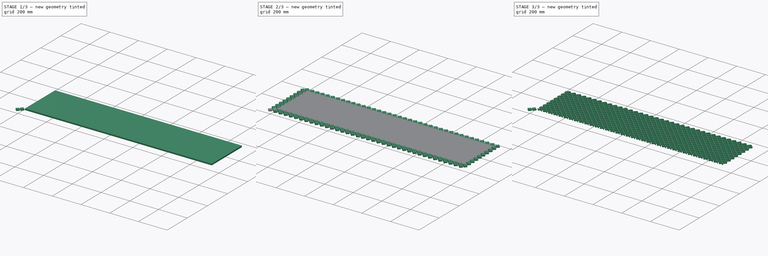
[diagram: build sequence overview — one tinted view per stage of 3, left to right]
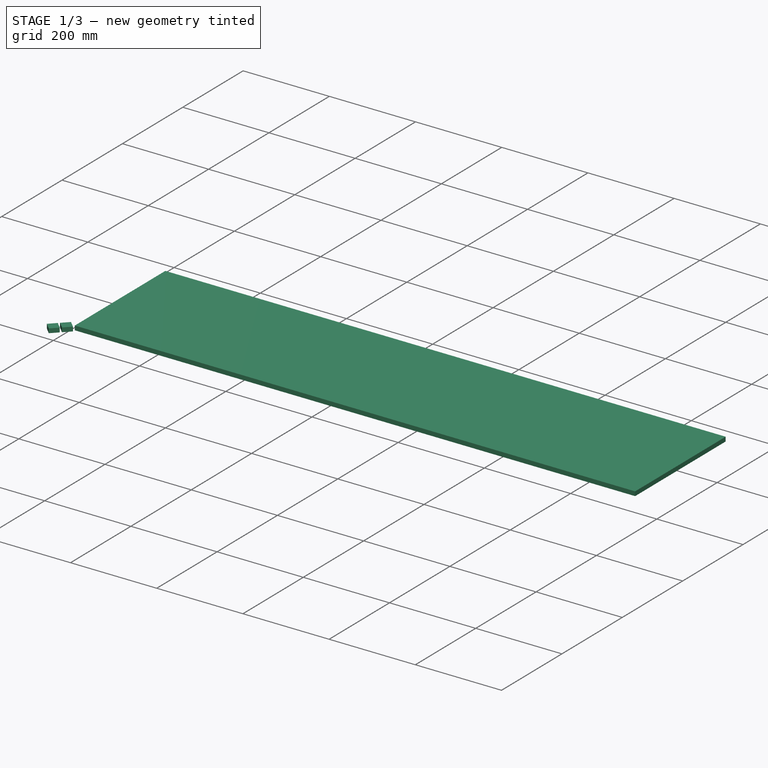
[diagram: stage 1 of 3 — iso view after this stage's code; geometry added in this stage tinted green]
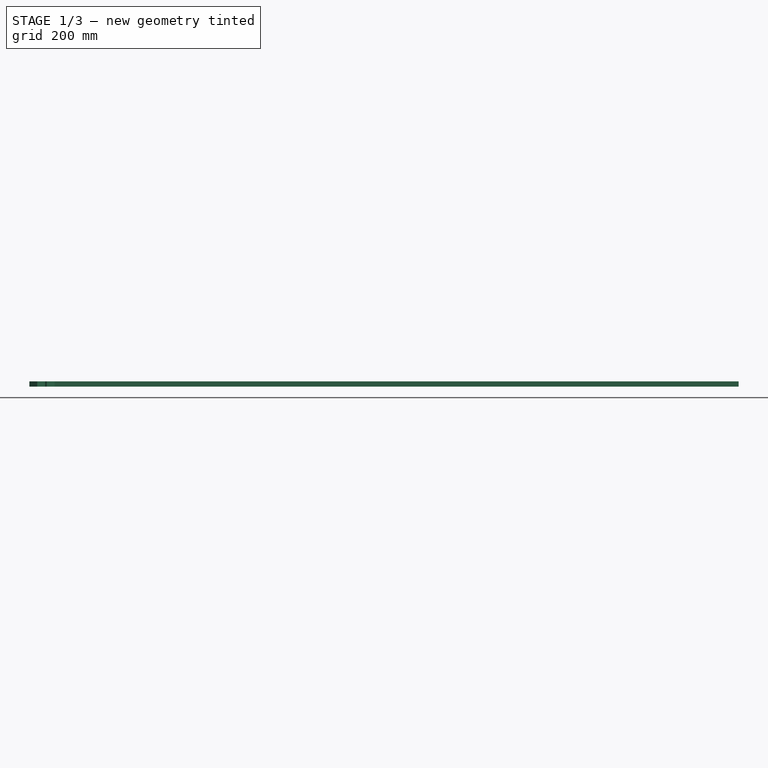
[diagram: stage 1 of 3 — front view after this stage's code; geometry added in this stage tinted green]
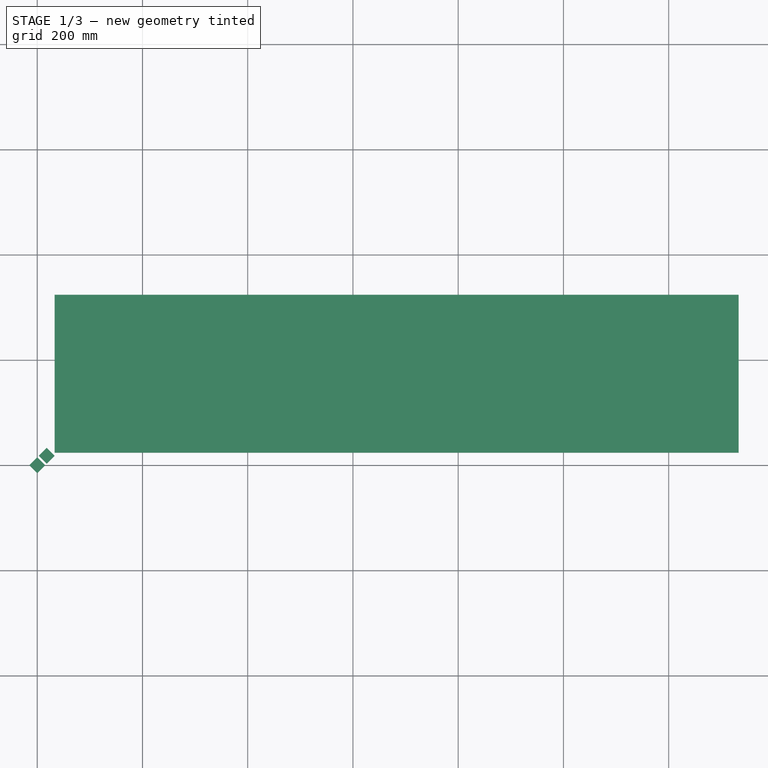
[diagram: stage 1 of 3 — top view after this stage's code; geometry added in this stage tinted green]
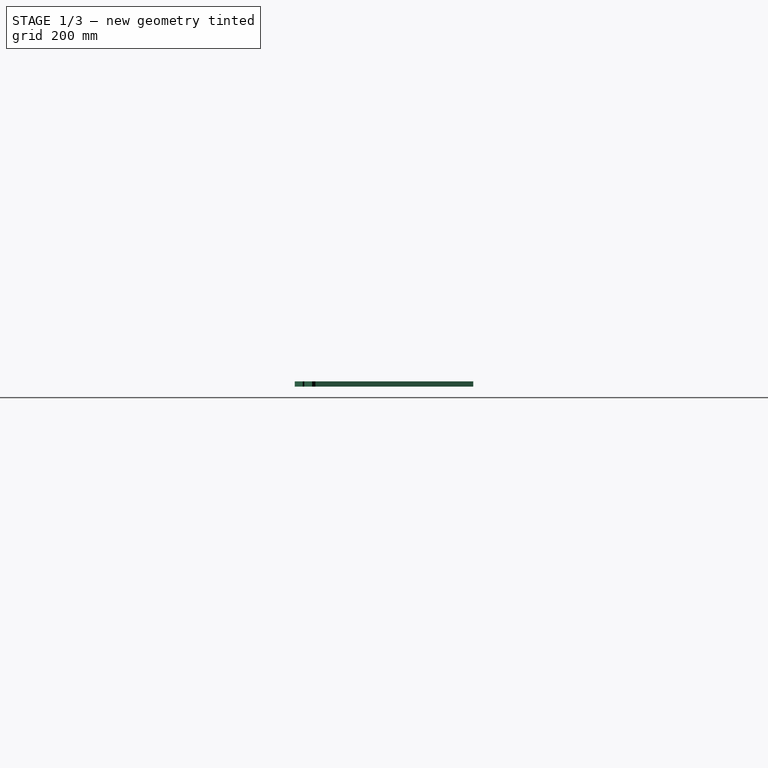
[diagram: stage 1 of 3 — right view after this stage's code; geometry added in this stage tinted green]
FCSTD DOCUMENT  (FreeCAD 0.18R16131 (Git))
Label: grille
License: All rights reserved
LicenseURL: http://en.wikipedia.org/wiki/All_rights_reserved
objects: Part::Extrusion×2, Sketcher::SketchObject×1, PartDesign::Body×1, Part::FeaturePython×1, Part::Box×1, Part::Cut×1, App::DocumentObjectGroup×1
note: 7 computed .brp shape members not serialized (recipe doc carries the construction recipe); baked Part::Feature solids carry a one-line shape summary decoded from their .brp

FEATURE [Sketcher::SketchObject] Sketch
  MapMode = 5
  Support = -> [XY_Plane]
  sketch-geometry (15):
    g0: LineSegment [constr] StartX=0 StartY=15 StartZ=0 EndX=0 EndY=-15 EndZ=0
    g1: LineSegment [constr] StartX=-15 StartY=0 StartZ=0 EndX=15 EndY=0 EndZ=0
    g2: LineSegment StartX=-15 StartY=0 StartZ=0 EndX=0 EndY=15 EndZ=0
    g3: LineSegment StartX=0 StartY=15 StartZ=0 EndX=15 EndY=0 EndZ=0
    g4: LineSegment StartX=15 StartY=0 StartZ=0 EndX=0 EndY=-15 EndZ=0
    g5: LineSegment StartX=0 StartY=-15 StartZ=0 EndX=-15 EndY=0 EndZ=0
    g6: LineSegment [constr] StartX=18 StartY=33 StartZ=0 EndX=18 EndY=3 EndZ=0
    g7: LineSegment [constr] StartX=3 StartY=18 StartZ=0 EndX=33 EndY=18 EndZ=0
    g8: LineSegment StartX=3 StartY=18 StartZ=0 EndX=18 EndY=33 EndZ=0
    g9: LineSegment StartX=18 StartY=33 StartZ=0 EndX=33 EndY=18 EndZ=0
    g10: LineSegment StartX=33 StartY=18 StartZ=0 EndX=18 EndY=3 EndZ=0
    g11: LineSegment StartX=18 StartY=3 StartZ=0 EndX=3 EndY=18 EndZ=0
    g12: LineSegment [constr] StartX=0 StartY=15 StartZ=0 EndX=3 EndY=18 EndZ=0
    g13: LineSegment [constr] StartX=15 StartY=0 StartZ=0 EndX=18 EndY=0 EndZ=0
    g14: LineSegment [constr] StartX=18 StartY=3 StartZ=0 EndX=18 EndY=0 EndZ=0
  constraints (36):
    c: PointOnObject(g0,g-2)
    c: PointOnObject(g1,g-1)
    c: DistanceX(g1,g1) = 30
    c: DistanceY(g0,g0) = 30
    c: Symmetric(g0,g0,g-1)
    c: Symmetric(g1,g1,g-1)
    c: Coincident(g2,g1)
    c: Coincident(g2,g0)
    c: Coincident(g3,g2)
    c: Coincident(g3,g1)
    c: Coincident(g4,g3)
    c: Coincident(g4,g0)
    c: Coincident(g5,g4)
    c: Coincident(g5,g2)
    c: Equal(g1,g7) = 30
    c: Equal(g0,g6) = 30
    c: Coincident(g8,g7)
    c: Coincident(g8,g6)
    c: Coincident(g9,g8)
    c: Coincident(g9,g7)
    c: Coincident(g10,g9)
    c: Coincident(g10,g6)
    c: Coincident(g11,g10)
    c: Coincident(g11,g8)
    c: Perpendicular(g-1,g6)
    c: Symmetric(g8,g10,g7)
    c: Symmetric(g8,g9,g6)
    c: Coincident(g12,g2)
    c: Coincident(g12,g8)
    c: Perpendicular(g12,g11)
    c: Coincident(g13,g3)
    c: PointOnObject(g13,g-1)
    c: Coincident(g14,g10)
    c: Coincident(g14,g13)
    c: Vertical(g14)
    c: DistanceX(g13,g13) = 3
FEATURE [PartDesign::Body] Body
  Group = -> [Sketch]
  Origin = -> Origin
FEATURE [Part::Extrusion] Extrude
  Base = -> Sketch
  Dir = (0,0,1)
  DirMode = 2
  FaceMakerClass = Part::FaceMakerBullseye
  LengthFwd = 10
  LengthRev = 0
  Solid = true
  Symmetric = false
FEATURE [Part::Box] Box  label="Cube"
  AttacherType = Attacher::AttachEngine3D
  Height = 10
  Length = 1300
  Placement = pos=(33,24,0) rot=(0,0,1;0rad)
  Width = 300
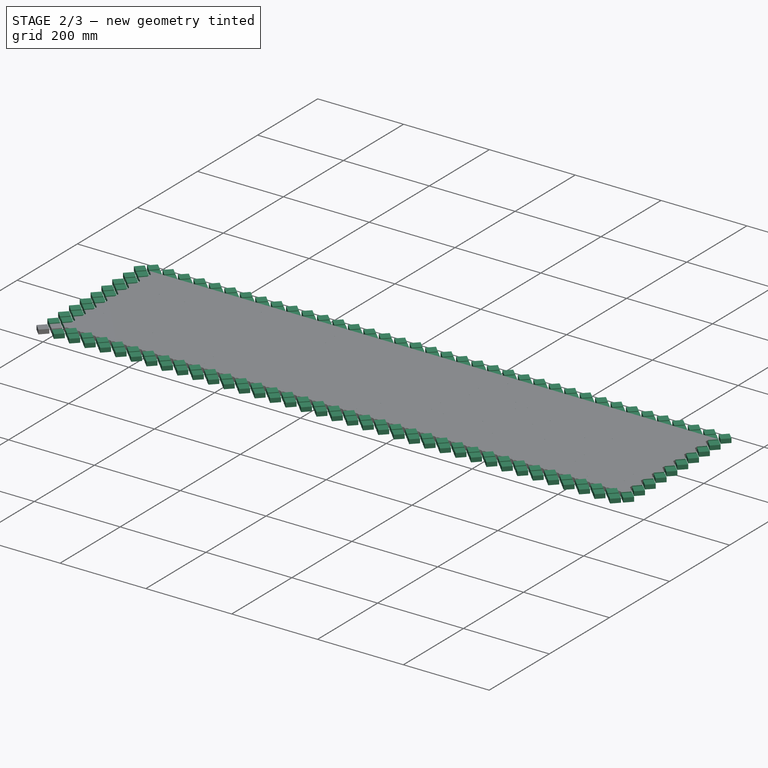
[diagram: stage 2 of 3 — iso view after this stage's code; geometry added in this stage tinted green]
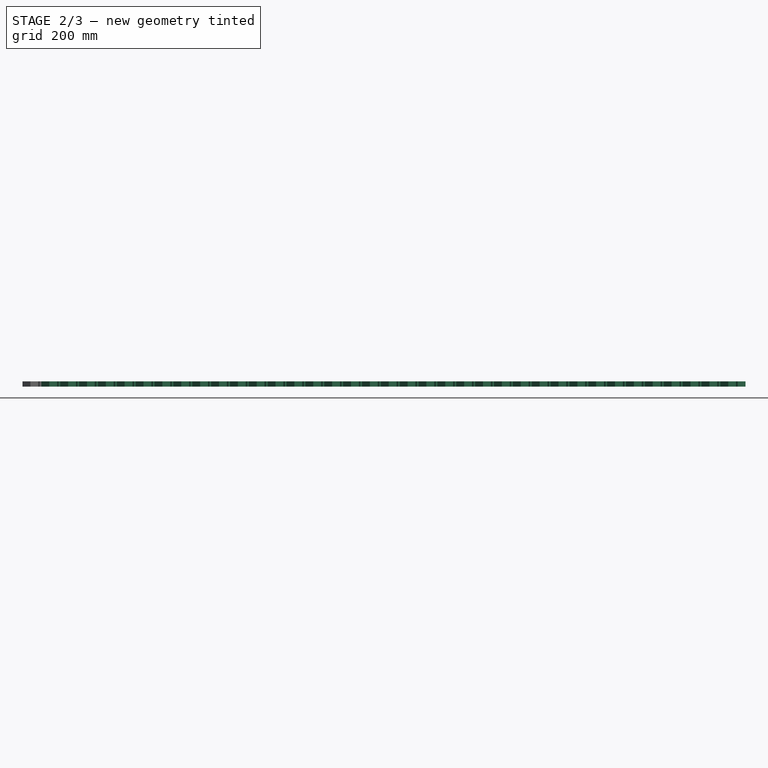
[diagram: stage 2 of 3 — front view after this stage's code; geometry added in this stage tinted green]
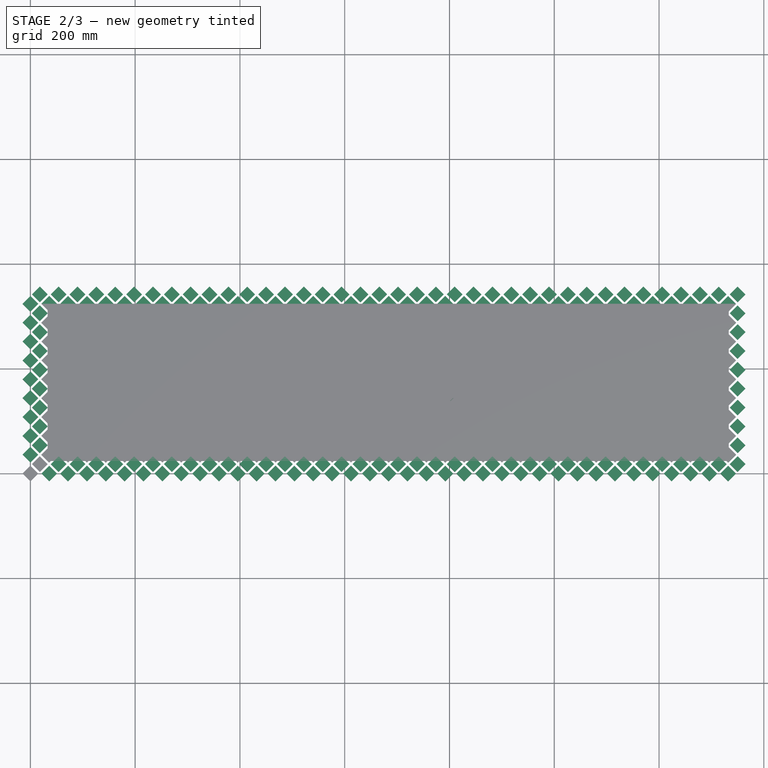
[diagram: stage 2 of 3 — top view after this stage's code; geometry added in this stage tinted green]
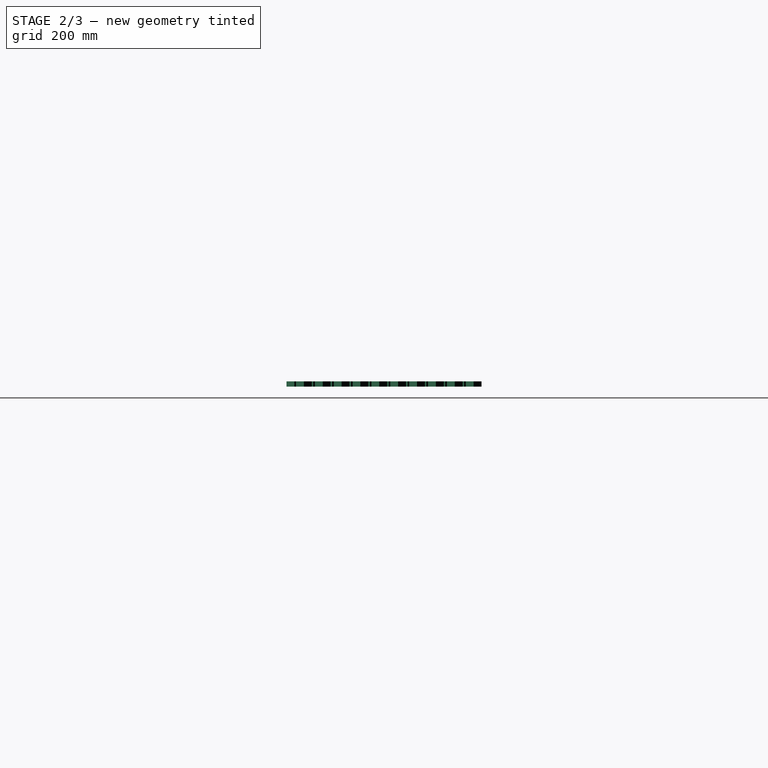
[diagram: stage 2 of 3 — right view after this stage's code; geometry added in this stage tinted green]
FEATURE [Part::FeaturePython] Array  # Draft array (typed FeaturePython)
  Angle = 360
  ArrayType = 0
  Axis = (0,0,1)
  Base = -> Extrude
  Center = (0,0,0)
  Fuse = false
  IntervalAxis = (0,0,0)
  IntervalX = (36,0,0)
  IntervalY = (0,36,0)
  IntervalZ = (0,0,1)
  NumberPolar = 1
  NumberX = 38
  NumberY = 10
  NumberZ = 1
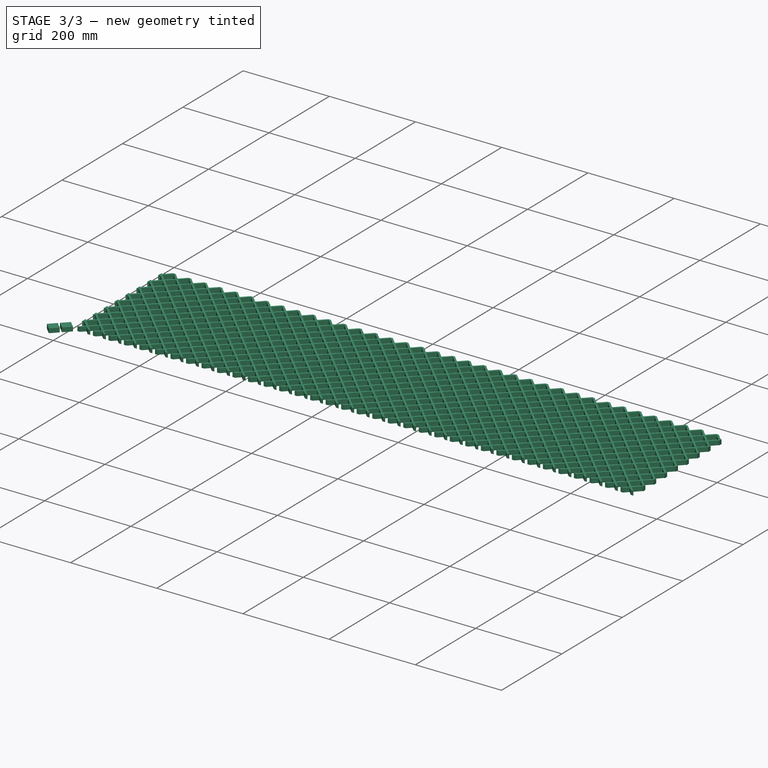
[diagram: stage 3 of 3 — iso view after this stage's code; geometry added in this stage tinted green]
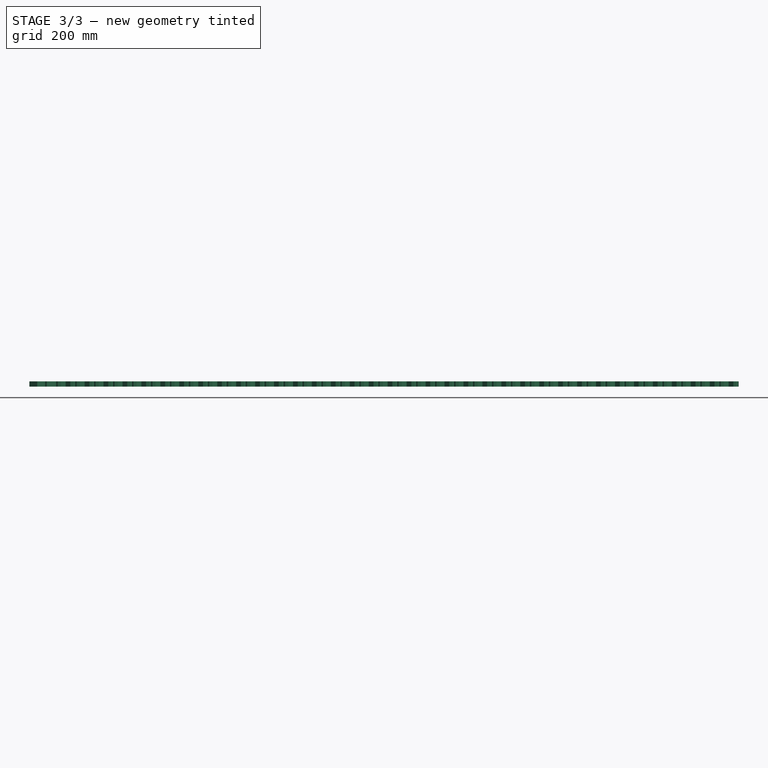
[diagram: stage 3 of 3 — front view after this stage's code; geometry added in this stage tinted green]
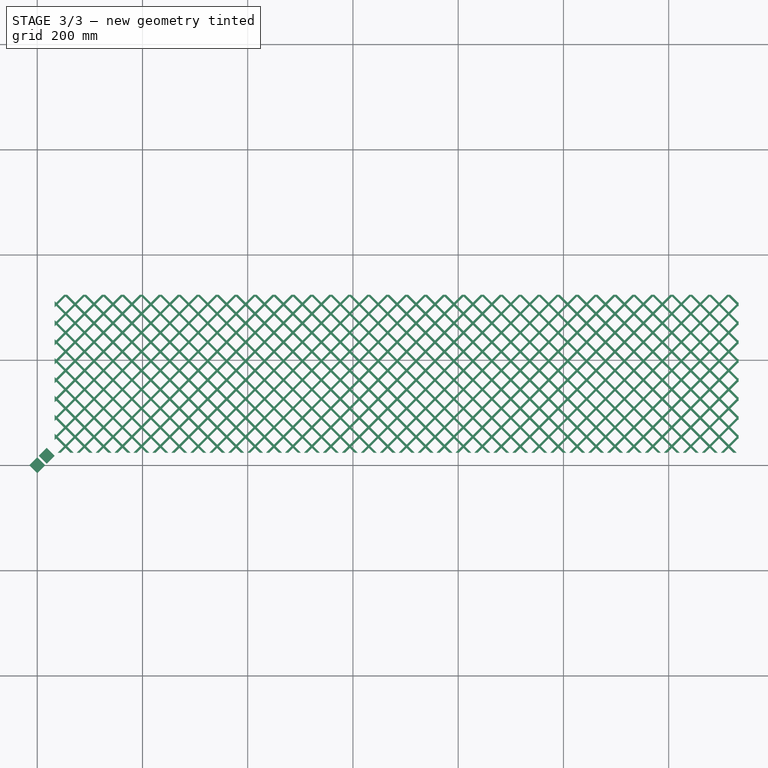
[diagram: stage 3 of 3 — top view after this stage's code; geometry added in this stage tinted green]
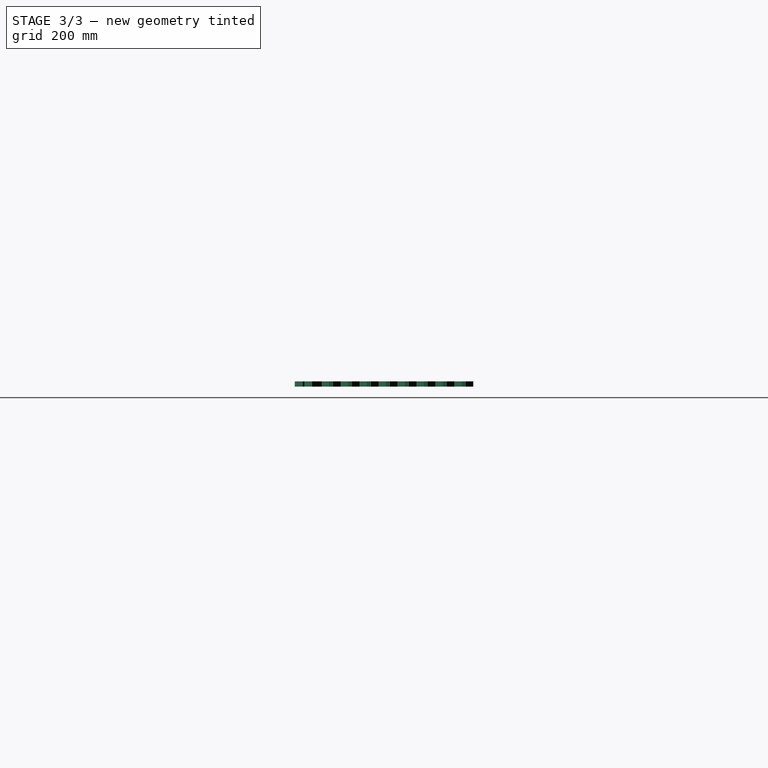
[diagram: stage 3 of 3 — right view after this stage's code; geometry added in this stage tinted green]
FEATURE [Part::Extrusion] Extrude001
  Base = -> Sketch
  Dir = (0,0,1)
  DirMode = 2
  FaceMakerClass = Part::FaceMakerBullseye
  LengthFwd = 10
  LengthRev = 0
  Solid = true
  Symmetric = false
FEATURE [Part::Cut] Cut001
  Base = -> Box
  Tool = -> Array
FEATURE [App::DocumentObjectGroup] Group  label="grille hori"
  Group = -> [Body,Extrude001,Cut001]
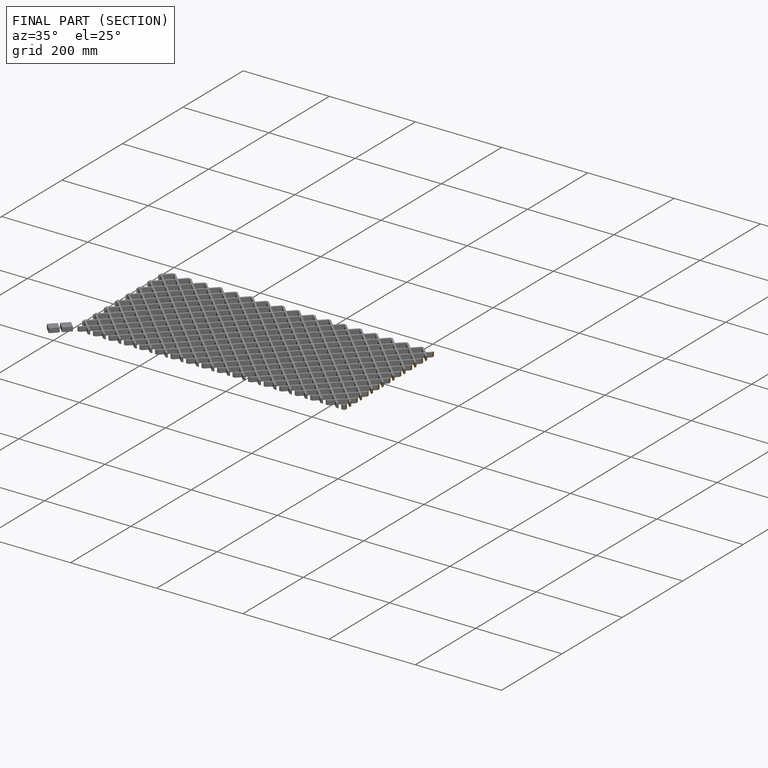
[diagram: finished part — half-section view (interior)]
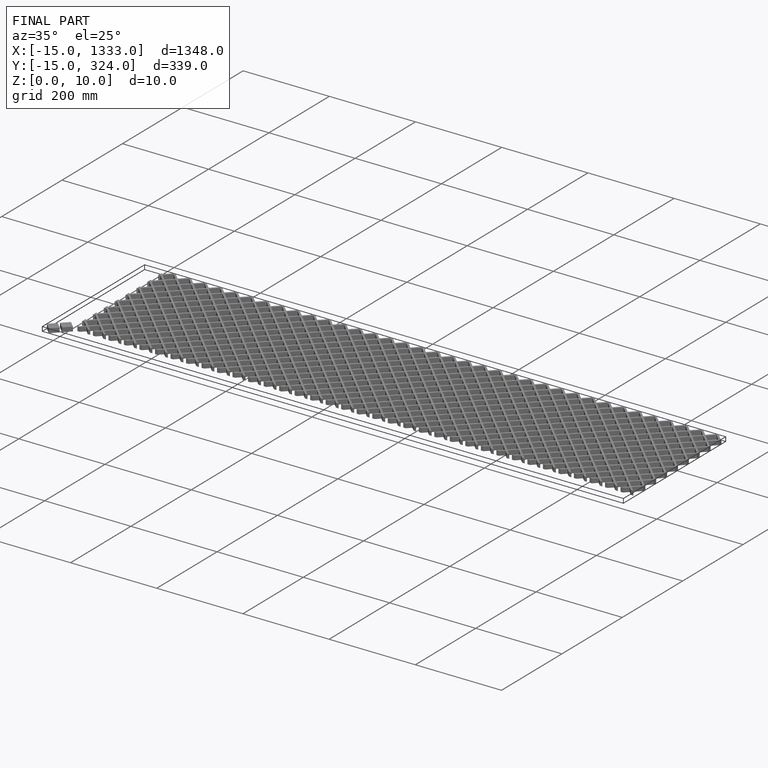
[diagram: finished part — iso view with bounding-box wireframe]
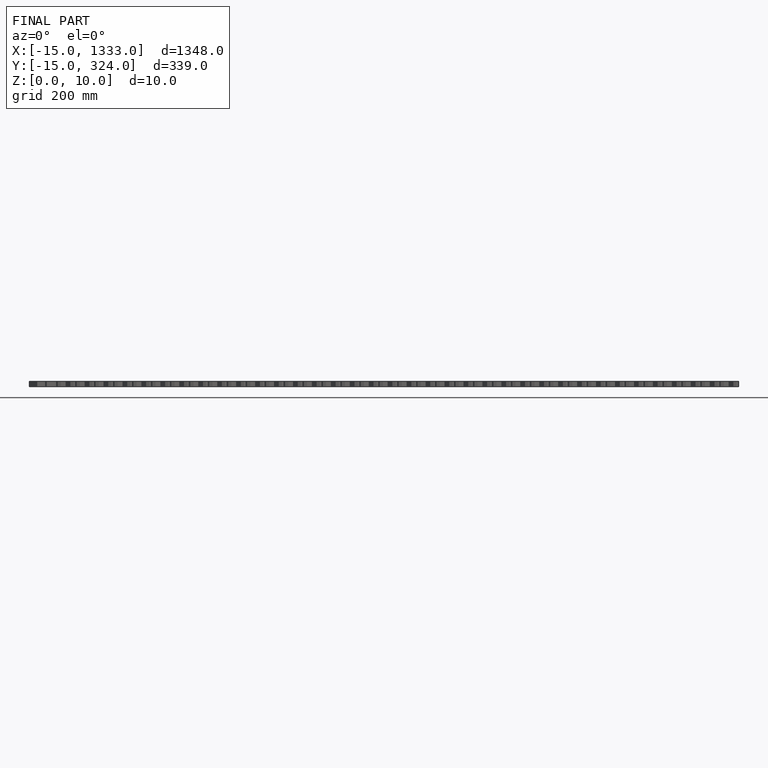
[diagram: finished part — front view with bounding-box wireframe]
